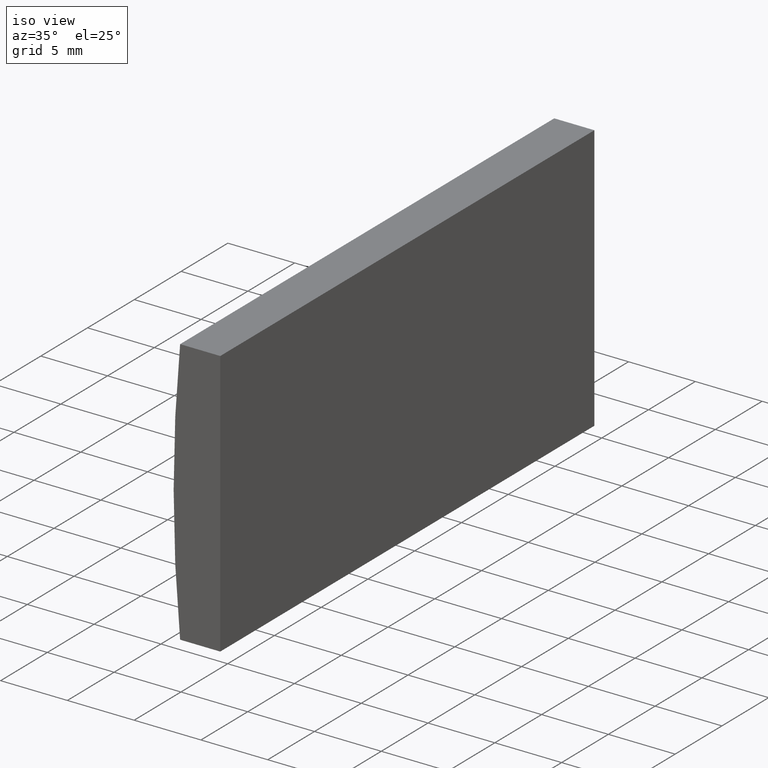
[diagram: clean part render]
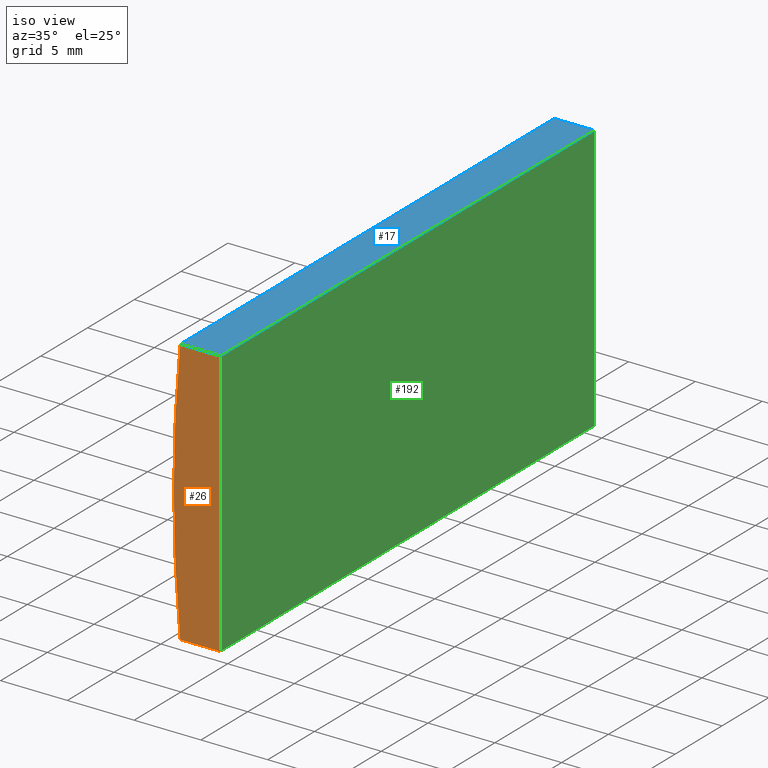
[diagram: same view with three faces highlighted in distinct colors, each labeled with its STEP entity id]
A machine part, iso view with three faces highlighted in distinct colors.
Their STEP definitions:

[orange] entity #26 — the highlighted planar face has unit normal (0, 1, 0).
#1 = EDGE_CURVE ( 'NONE', #152, #96, #70, .T. ) ;
#4 = FACE_OUTER_BOUND ( 'NONE', #141, .T. ) ;
#11 = VERTEX_POINT ( 'NONE', #52 ) ;
#26 = ADVANCED_FACE ( 'NONE', ( #4 ), #159, .F. ) ;
#30 = AXIS2_PLACEMENT_3D ( 'NONE', #157, #176, #111 ) ;
#31 = ORIENTED_EDGE ( 'NONE', *, *, #123, .F. ) ;
#43 = AXIS2_PLACEMENT_3D ( 'NONE', #165, #129, #170 ) ;
#52 = CARTESIAN_POINT ( 'NONE',  ( -95.55479566514874500, 0.0000000000000000000, 10.00000000000000000 ) ) ;
#59 = VECTOR ( 'NONE', #92, 1000.000000000000000 ) ;
#61 = DIRECTION ( 'NONE',  ( -1.000000000000000000, -0.0000000000000000000, 1.154440887078928100E-015 ) ) ;
#69 = ORIENTED_EDGE ( 'NONE', *, *, #166, .F. ) ;
#70 = CIRCLE ( 'NONE', #30, 103.4000000000000200 ) ;
#83 = CARTESIAN_POINT ( 'NONE',  ( -95.55479566514874500, 0.0000000000000000000, -10.00000000000000400 ) ) ;
#90 = EDGE_CURVE ( 'NONE', #128, #152, #145, .T. ) ;
#92 = DIRECTION ( 'NONE',  ( -0.0000000000000000000, -0.0000000000000000000, -1.000000000000000000 ) ) ;
#93 = CARTESIAN_POINT ( 'NONE',  ( -98.56010064939296500, 0.0000000000000000000, 10.00000000000000000 ) ) ;
#96 = VERTEX_POINT ( 'NONE', #93 ) ;
#97 = DIRECTION ( 'NONE',  ( 1.000000000000000000, 0.0000000000000000000, 0.0000000000000000000 ) ) ;
#111 = DIRECTION ( 'NONE',  ( 0.0000000000000000000, 0.0000000000000000000, 1.000000000000000000 ) ) ;
#123 = EDGE_CURVE ( 'NONE', #96, #11, #179, .T. ) ;
#128 = VERTEX_POINT ( 'NONE', #175 ) ;
#129 = DIRECTION ( 'NONE',  ( 0.0000000000000000000, 1.000000000000000000, 0.0000000000000000000 ) ) ;
#132 = VECTOR ( 'NONE', #97, 1000.000000000000000 ) ;
#141 = EDGE_LOOP ( 'NONE', ( #189, #186, #69, #31 ) ) ;
#145 = LINE ( 'NONE', #156, #146 ) ;
#146 = VECTOR ( 'NONE', #61, 1000.000000000000000 ) ;
#152 = VERTEX_POINT ( 'NONE', #200 ) ;
#156 = CARTESIAN_POINT ( 'NONE',  ( -98.56010064939295000, 0.0000000000000000000, -10.00000000000000000 ) ) ;
#157 = CARTESIAN_POINT ( 'NONE',  ( 4.355204334851265500, 0.0000000000000000000, 4.286263797015675000E-017 ) ) ;
#159 = PLANE ( 'NONE',  #43 ) ;
#163 = CARTESIAN_POINT ( 'NONE',  ( -98.56010064939296500, 0.0000000000000000000, 10.00000000000000000 ) ) ;
#165 = CARTESIAN_POINT ( 'NONE',  ( 4.355204334851265500, 0.0000000000000000000, 4.286263797015675000E-017 ) ) ;
#166 = EDGE_CURVE ( 'NONE', #11, #128, #167, .T. ) ;
#167 = LINE ( 'NONE', #83, #59 ) ;
#170 = DIRECTION ( 'NONE',  ( 0.0000000000000000000, -0.0000000000000000000, 1.000000000000000000 ) ) ;
#175 = CARTESIAN_POINT ( 'NONE',  ( -95.55479566514874500, 0.0000000000000000000, -10.00000000000000400 ) ) ;
#176 = DIRECTION ( 'NONE',  ( 0.0000000000000000000, 1.000000000000000000, 0.0000000000000000000 ) ) ;
#179 = LINE ( 'NONE', #163, #132 ) ;
#186 = ORIENTED_EDGE ( 'NONE', *, *, #90, .F. ) ;
#189 = ORIENTED_EDGE ( 'NONE', *, *, #1, .F. ) ;
#200 = CARTESIAN_POINT ( 'NONE',  ( -98.56010064939295000, 0.0000000000000000000, -10.00000000000000000 ) ) ;

[blue] entity #17 — the highlighted planar face has unit normal (0, 0, -1).
#3 = ORIENTED_EDGE ( 'NONE', *, *, #123, .T. ) ;
#5 = EDGE_CURVE ( 'NONE', #39, #11, #122, .T. ) ;
#11 = VERTEX_POINT ( 'NONE', #52 ) ;
#13 = DIRECTION ( 'NONE',  ( -0.0000000000000000000, -1.000000000000000000, -0.0000000000000000000 ) ) ;
#17 = ADVANCED_FACE ( 'NONE', ( #197 ), #193, .F. ) ;
#24 = CARTESIAN_POINT ( 'NONE',  ( -98.56010064939296500, 40.00000000000000000, 10.00000000000000000 ) ) ;
#25 = DIRECTION ( 'NONE',  ( 1.000000000000000000, 0.0000000000000000000, 0.0000000000000000000 ) ) ;
#27 = VECTOR ( 'NONE', #107, 1000.000000000000000 ) ;
#29 = VECTOR ( 'NONE', #13, 1000.000000000000000 ) ;
#34 = LINE ( 'NONE', #198, #162 ) ;
#38 = CARTESIAN_POINT ( 'NONE',  ( -98.56010064939296500, 40.00000000000000000, 10.00000000000000000 ) ) ;
#39 = VERTEX_POINT ( 'NONE', #169 ) ;
#52 = CARTESIAN_POINT ( 'NONE',  ( -95.55479566514874500, 0.0000000000000000000, 10.00000000000000000 ) ) ;
#76 = LINE ( 'NONE', #127, #27 ) ;
#93 = CARTESIAN_POINT ( 'NONE',  ( -98.56010064939296500, 0.0000000000000000000, 10.00000000000000000 ) ) ;
#96 = VERTEX_POINT ( 'NONE', #93 ) ;
#97 = DIRECTION ( 'NONE',  ( 1.000000000000000000, 0.0000000000000000000, 0.0000000000000000000 ) ) ;
#104 = ORIENTED_EDGE ( 'NONE', *, *, #190, .T. ) ;
#106 = EDGE_CURVE ( 'NONE', #171, #39, #34, .T. ) ;
#107 = DIRECTION ( 'NONE',  ( -0.0000000000000000000, -1.000000000000000000, -0.0000000000000000000 ) ) ;
#112 = ORIENTED_EDGE ( 'NONE', *, *, #5, .F. ) ;
#114 = DIRECTION ( 'NONE',  ( -1.000000000000000000, 0.0000000000000000000, -0.0000000000000000000 ) ) ;
#122 = LINE ( 'NONE', #151, #29 ) ;
#123 = EDGE_CURVE ( 'NONE', #96, #11, #179, .T. ) ;
#124 = ORIENTED_EDGE ( 'NONE', *, *, #106, .F. ) ;
#127 = CARTESIAN_POINT ( 'NONE',  ( -98.56010064939296500, 40.00000000000000000, 10.00000000000000000 ) ) ;
#132 = VECTOR ( 'NONE', #97, 1000.000000000000000 ) ;
#151 = CARTESIAN_POINT ( 'NONE',  ( -95.55479566514874500, 40.00000000000000000, 10.00000000000000000 ) ) ;
#161 = EDGE_LOOP ( 'NONE', ( #3, #112, #124, #104 ) ) ;
#162 = VECTOR ( 'NONE', #25, 1000.000000000000000 ) ;
#163 = CARTESIAN_POINT ( 'NONE',  ( -98.56010064939296500, 0.0000000000000000000, 10.00000000000000000 ) ) ;
#169 = CARTESIAN_POINT ( 'NONE',  ( -95.55479566514874500, 40.00000000000000000, 10.00000000000000000 ) ) ;
#171 = VERTEX_POINT ( 'NONE', #38 ) ;
#179 = LINE ( 'NONE', #163, #132 ) ;
#181 = AXIS2_PLACEMENT_3D ( 'NONE', #24, #191, #114 ) ;
#190 = EDGE_CURVE ( 'NONE', #171, #96, #76, .T. ) ;
#191 = DIRECTION ( 'NONE',  ( 0.0000000000000000000, 0.0000000000000000000, -1.000000000000000000 ) ) ;
#193 = PLANE ( 'NONE',  #181 ) ;
#197 = FACE_OUTER_BOUND ( 'NONE', #161, .T. ) ;
#198 = CARTESIAN_POINT ( 'NONE',  ( -98.56010064939296500, 40.00000000000000000, 10.00000000000000000 ) ) ;

[green] entity #192 — the highlighted planar face has unit normal (-1, 0, 0).
#5 = EDGE_CURVE ( 'NONE', #39, #11, #122, .T. ) ;
#8 = CARTESIAN_POINT ( 'NONE',  ( -95.55479566514874500, 40.00000000000000000, -10.00000000000000400 ) ) ;
#11 = VERTEX_POINT ( 'NONE', #52 ) ;
#13 = DIRECTION ( 'NONE',  ( -0.0000000000000000000, -1.000000000000000000, -0.0000000000000000000 ) ) ;
#18 = FACE_OUTER_BOUND ( 'NONE', #195, .T. ) ;
#28 = VERTEX_POINT ( 'NONE', #8 ) ;
#29 = VECTOR ( 'NONE', #13, 1000.000000000000000 ) ;
#37 = ORIENTED_EDGE ( 'NONE', *, *, #91, .F. ) ;
#39 = VERTEX_POINT ( 'NONE', #169 ) ;
#40 = CARTESIAN_POINT ( 'NONE',  ( -95.55479566514874500, 40.00000000000000000, -10.00000000000000400 ) ) ;
#48 = PLANE ( 'NONE',  #113 ) ;
#52 = CARTESIAN_POINT ( 'NONE',  ( -95.55479566514874500, 0.0000000000000000000, 10.00000000000000000 ) ) ;
#59 = VECTOR ( 'NONE', #92, 1000.000000000000000 ) ;
#73 = EDGE_CURVE ( 'NONE', #28, #128, #185, .T. ) ;
#83 = CARTESIAN_POINT ( 'NONE',  ( -95.55479566514874500, 0.0000000000000000000, -10.00000000000000400 ) ) ;
#84 = VECTOR ( 'NONE', #115, 1000.000000000000000 ) ;
#87 = ORIENTED_EDGE ( 'NONE', *, *, #5, .T. ) ;
#91 = EDGE_CURVE ( 'NONE', #39, #28, #203, .T. ) ;
#92 = DIRECTION ( 'NONE',  ( -0.0000000000000000000, -0.0000000000000000000, -1.000000000000000000 ) ) ;
#94 = DIRECTION ( 'NONE',  ( -1.000000000000000000, 0.0000000000000000000, 0.0000000000000000000 ) ) ;
#103 = DIRECTION ( 'NONE',  ( -0.0000000000000000000, -1.000000000000000000, -0.0000000000000000000 ) ) ;
#113 = AXIS2_PLACEMENT_3D ( 'NONE', #40, #94, #120 ) ;
#115 = DIRECTION ( 'NONE',  ( -0.0000000000000000000, -0.0000000000000000000, -1.000000000000000000 ) ) ;
#120 = DIRECTION ( 'NONE',  ( 0.0000000000000000000, 0.0000000000000000000, 1.000000000000000000 ) ) ;
#122 = LINE ( 'NONE', #151, #29 ) ;
#128 = VERTEX_POINT ( 'NONE', #175 ) ;
#140 = ORIENTED_EDGE ( 'NONE', *, *, #166, .T. ) ;
#150 = CARTESIAN_POINT ( 'NONE',  ( -95.55479566514874500, 40.00000000000000000, -10.00000000000000400 ) ) ;
#151 = CARTESIAN_POINT ( 'NONE',  ( -95.55479566514874500, 40.00000000000000000, 10.00000000000000000 ) ) ;
#153 = VECTOR ( 'NONE', #103, 1000.000000000000000 ) ;
#155 = CARTESIAN_POINT ( 'NONE',  ( -95.55479566514874500, 40.00000000000000000, -10.00000000000000400 ) ) ;
#166 = EDGE_CURVE ( 'NONE', #11, #128, #167, .T. ) ;
#167 = LINE ( 'NONE', #83, #59 ) ;
#169 = CARTESIAN_POINT ( 'NONE',  ( -95.55479566514874500, 40.00000000000000000, 10.00000000000000000 ) ) ;
#174 = ORIENTED_EDGE ( 'NONE', *, *, #73, .F. ) ;
#175 = CARTESIAN_POINT ( 'NONE',  ( -95.55479566514874500, 0.0000000000000000000, -10.00000000000000400 ) ) ;
#185 = LINE ( 'NONE', #150, #153 ) ;
#192 = ADVANCED_FACE ( 'NONE', ( #18 ), #48, .F. ) ;
#195 = EDGE_LOOP ( 'NONE', ( #140, #174, #37, #87 ) ) ;
#203 = LINE ( 'NONE', #155, #84 ) ;